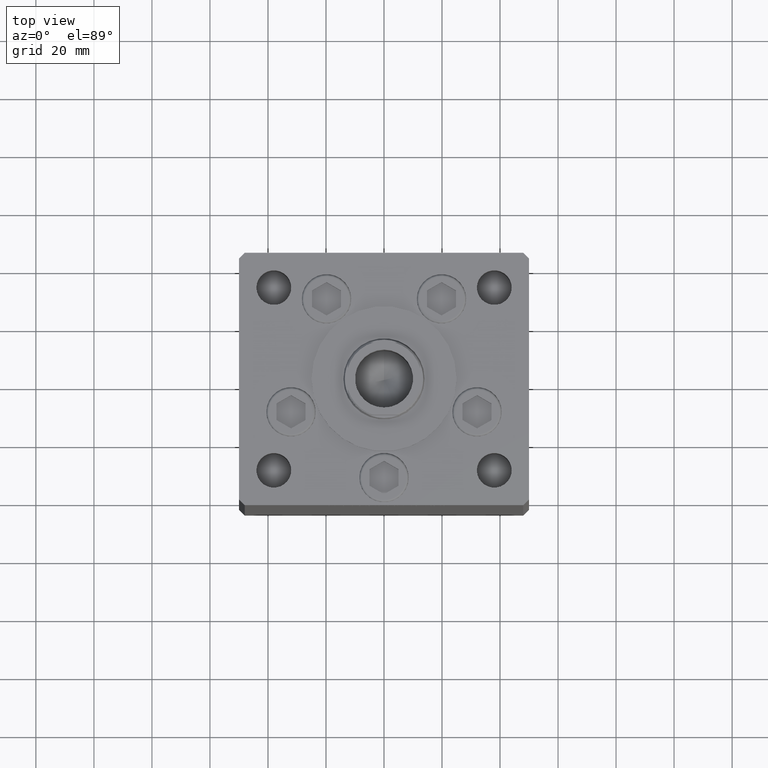
[diagram: clean part render]
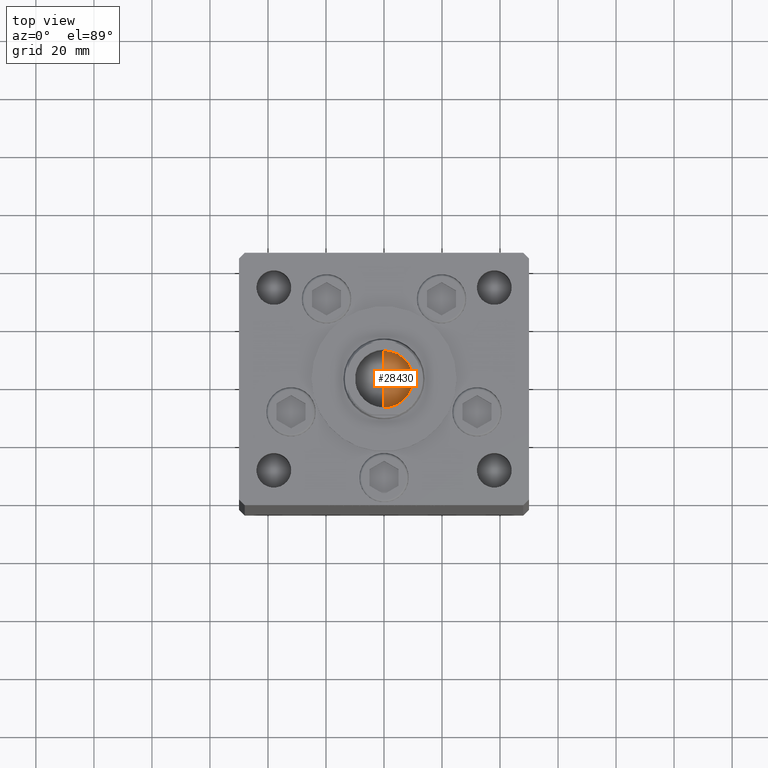
[diagram: same view with one face highlighted and labeled with its STEP entity id]
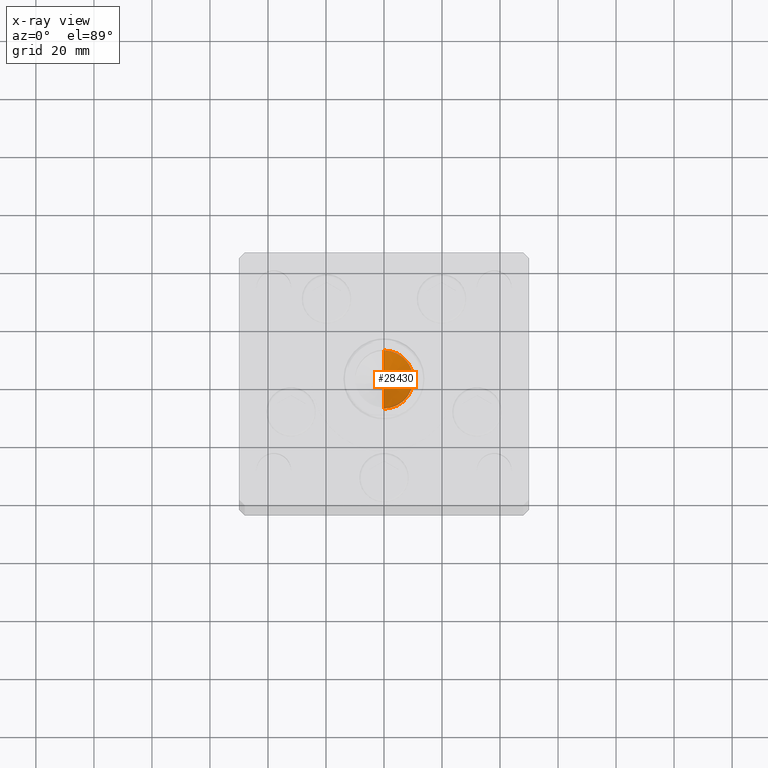
[diagram: x-ray of the same camera — body ghosted, the highlighted face saturated]
A machine part, top view. The second image highlights one B-rep face of the part: STEP entity #28430.
The next image is the same camera in x-ray: the body ghosted, the highlighted face saturated — about 0% of this face is hidden behind the body in this view.
In plain terms, the highlighted conical surface has half-angle 59 deg.
Its self-contained STEP definition (entity closure, byte-faithful):
#1040 = CONICAL_SURFACE ( 'NONE', #27862, 9.999999999999994671, 1.029744258676653645 ) ;
#2706 = VECTOR ( 'NONE', #43776, 1000.000000000000000 ) ;
#6979 = DIRECTION ( 'NONE',  ( 0.000000000000000000, 0.000000000000000000, -1.000000000000000000 ) ) ;
#7876 = FACE_OUTER_BOUND ( 'NONE', #21163, .T. ) ;
#8117 = EDGE_CURVE ( 'NONE', #14949, #11624, #42301, .T. ) ;
#10656 = CARTESIAN_POINT ( 'NONE',  ( -22.39000000000000057, 0.000000000000000000, 0.000000000000000000 ) ) ;
#11624 = VERTEX_POINT ( 'NONE', #15468 ) ;
#13582 = ORIENTED_EDGE ( 'NONE', *, *, #28749, .T. ) ;
#13629 = EDGE_CURVE ( 'NONE', #43321, #11624, #17683, .T. ) ;
#14949 = VERTEX_POINT ( 'NONE', #27659 ) ;
#15468 = CARTESIAN_POINT ( 'NONE',  ( -22.39000000000000057, 0.000000000000000000, -9.999999999999994671 ) ) ;
#17683 = CIRCLE ( 'NONE', #47034, 9.999999999999994671 ) ;
#18433 = DIRECTION ( 'NONE',  ( 0.5150380749100549327, 0.000000000000000000, -0.8571673007021118895 ) ) ;
#21163 = EDGE_LOOP ( 'NONE', ( #51150, #13582, #33988 ) ) ;
#23892 = CARTESIAN_POINT ( 'NONE',  ( -22.39000000000000057, 0.000000000000000000, 0.000000000000000000 ) ) ;
#27659 = CARTESIAN_POINT ( 'NONE',  ( -28.39860619027560773, -7.088805540759547745E-15, 0.000000000000000000 ) ) ;
#27862 = AXIS2_PLACEMENT_3D ( 'NONE', #23892, #47518, #39122 ) ;
#28430 = ADVANCED_FACE ( 'NONE', ( #7876 ), #1040, .F. ) ;
#28749 = EDGE_CURVE ( 'NONE', #14949, #43321, #42734, .T. ) ;
#32656 = VECTOR ( 'NONE', #18433, 1000.000000000000000 ) ;
#32897 = CARTESIAN_POINT ( 'NONE',  ( -22.39000000000000057, 1.224646799147352665E-15, 9.999999999999994671 ) ) ;
#33988 = ORIENTED_EDGE ( 'NONE', *, *, #13629, .T. ) ;
#35385 = CARTESIAN_POINT ( 'NONE',  ( -22.39000000000000057, 1.224646799147352665E-15, 9.999999999999994671 ) ) ;
#39122 = DIRECTION ( 'NONE',  ( 0.000000000000000000, 0.000000000000000000, -1.000000000000000000 ) ) ;
#42301 = LINE ( 'NONE', #49682, #32656 ) ;
#42734 = LINE ( 'NONE', #35385, #2706 ) ;
#43194 = DIRECTION ( 'NONE',  ( 1.000000000000000000, -0.000000000000000000, -0.000000000000000000 ) ) ;
#43321 = VERTEX_POINT ( 'NONE', #32897 ) ;
#43776 = DIRECTION ( 'NONE',  ( 0.5150380749100549327, 1.049727191138618079E-16, 0.8571673007021118895 ) ) ;
#47034 = AXIS2_PLACEMENT_3D ( 'NONE', #10656, #43194, #6979 ) ;
#47518 = DIRECTION ( 'NONE',  ( 1.000000000000000000, -0.000000000000000000, -0.000000000000000000 ) ) ;
#49682 = CARTESIAN_POINT ( 'NONE',  ( -22.39000000000000057, 0.000000000000000000, -9.999999999999994671 ) ) ;
#51150 = ORIENTED_EDGE ( 'NONE', *, *, #8117, .F. ) ;